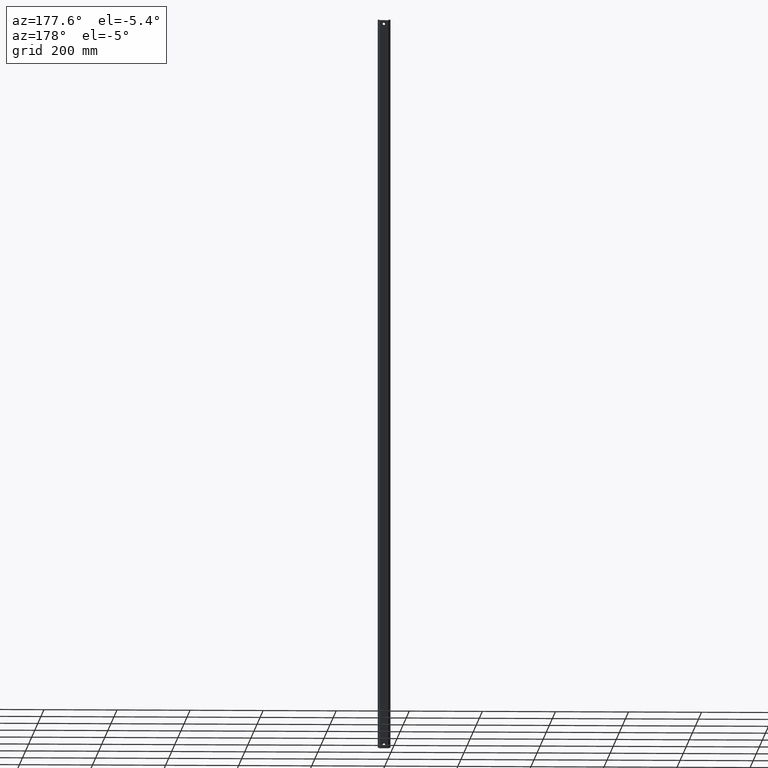
[diagram: clean part render]
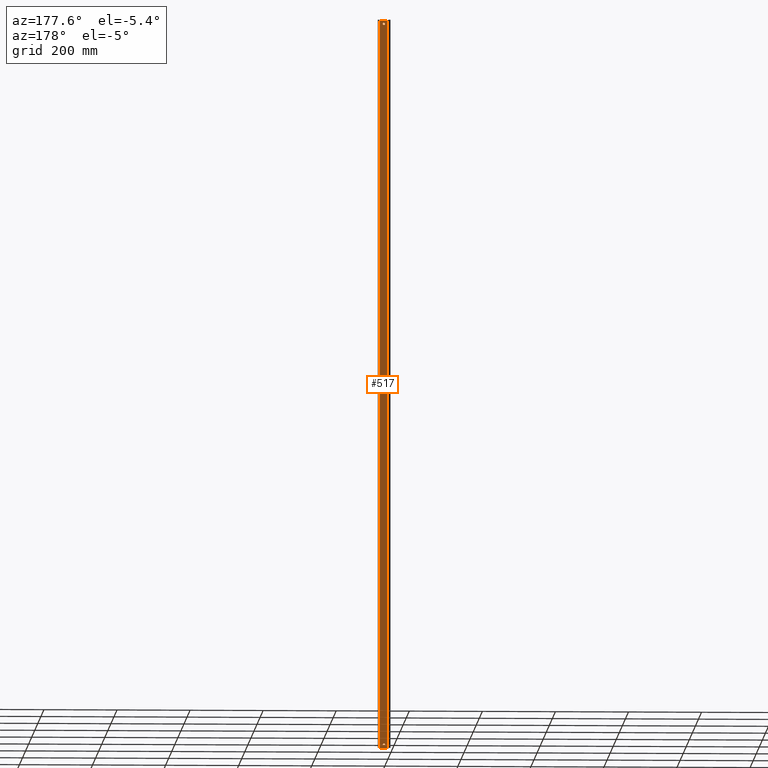
[diagram: same view with one face highlighted and labeled with its STEP entity id]
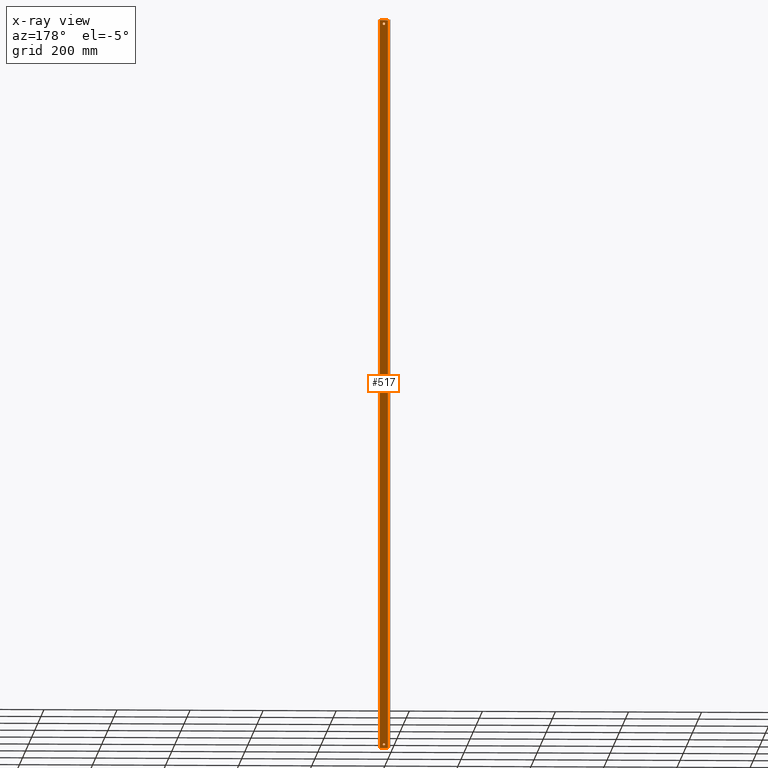
[diagram: x-ray of the same camera — body ghosted, the highlighted face saturated]
A machine part, auxiliary view. The second image highlights one B-rep face of the part: STEP entity #517.
The next image is the same camera in x-ray: the body ghosted, the highlighted face saturated — about 0% of this face is hidden behind the body in this view.
In plain terms, the highlighted planar face has unit normal (0, 1, 0).
Its self-contained STEP definition (entity closure, byte-faithful):
#5 = LINE ( 'NONE', #48, #949 ) ;
#6 = CARTESIAN_POINT ( 'NONE',  ( 10.80000000000001500, 1.500000000000001300, 1990.000000000000000 ) ) ;
#7 = DIRECTION ( 'NONE',  ( 0.0000000000000000000, 0.0000000000000000000, 1.000000000000000000 ) ) ;
#8 = LINE ( 'NONE', #21, #543 ) ;
#21 = CARTESIAN_POINT ( 'NONE',  ( 21.60000000000014700, 1.500000000000001300, 2000.000000000000000 ) ) ;
#28 = DIRECTION ( 'NONE',  ( 0.0000000000000000000, 1.000000000000000000, 0.0000000000000000000 ) ) ;
#30 = DIRECTION ( 'NONE',  ( -0.0000000000000000000, -0.0000000000000000000, -1.000000000000000000 ) ) ;
#48 = CARTESIAN_POINT ( 'NONE',  ( 10.49461781091140900, 1.500000000000001300, 0.0000000000000000000 ) ) ;
#54 = CARTESIAN_POINT ( 'NONE',  ( 10.80000000000001500, 1.500000000000001300, 10.00000000000000900 ) ) ;
#61 = CARTESIAN_POINT ( 'NONE',  ( 10.80000000000001500, 1.500000000000001300, 10.00000000000000900 ) ) ;
#62 = DIRECTION ( 'NONE',  ( 0.0000000000000000000, 0.0000000000000000000, -1.000000000000000000 ) ) ;
#64 = DIRECTION ( 'NONE',  ( -0.0000000000000000000, 1.000000000000000000, -0.0000000000000000000 ) ) ;
#66 = DIRECTION ( 'NONE',  ( 1.000000000000000000, 0.0000000000000000000, 0.0000000000000000000 ) ) ;
#72 = CARTESIAN_POINT ( 'NONE',  ( 0.0000000000000000000, 1.500000000000001300, 2000.000000000000000 ) ) ;
#74 = LINE ( 'NONE', #72, #946 ) ;
#75 = DIRECTION ( 'NONE',  ( -0.0000000000000000000, -0.0000000000000000000, -1.000000000000000000 ) ) ;
#86 = DIRECTION ( 'NONE',  ( 0.0000000000000000000, 0.0000000000000000000, -1.000000000000000000 ) ) ;
#88 = DIRECTION ( 'NONE',  ( -0.0000000000000000000, 1.000000000000000000, -0.0000000000000000000 ) ) ;
#97 = DIRECTION ( 'NONE',  ( 0.0000000000000000000, 1.000000000000000000, 0.0000000000000000000 ) ) ;
#100 = CARTESIAN_POINT ( 'NONE',  ( 10.80000000000001500, 1.500000000000001300, 1990.000000000000000 ) ) ;
#116 = DIRECTION ( 'NONE',  ( 0.0000000000000000000, 0.0000000000000000000, 1.000000000000000000 ) ) ;
#123 = LINE ( 'NONE', #128, #794 ) ;
#128 = CARTESIAN_POINT ( 'NONE',  ( 10.49461781091140900, 1.500000000000001300, 2000.000000000000000 ) ) ;
#130 = DIRECTION ( 'NONE',  ( 1.000000000000000000, 0.0000000000000000000, 0.0000000000000000000 ) ) ;
#222 = CARTESIAN_POINT ( 'NONE',  ( 0.0000000000000000000, 1.500000000000001300, 0.0000000000000000000 ) ) ;
#242 = CARTESIAN_POINT ( 'NONE',  ( 10.80000000000001500, 1.500000000000001300, 6.750000000000008000 ) ) ;
#244 = CARTESIAN_POINT ( 'NONE',  ( 21.60000000000014700, 1.500000000000001300, 2000.000000000000000 ) ) ;
#249 = CARTESIAN_POINT ( 'NONE',  ( 21.60000000000014700, 1.500000000000001300, 0.0000000000000000000 ) ) ;
#251 = CARTESIAN_POINT ( 'NONE',  ( 10.80000000000001500, 1.500000000000001300, 1986.750000000000000 ) ) ;
#265 = CARTESIAN_POINT ( 'NONE',  ( 10.80000000000001500, 1.500000000000001300, 1993.250000000000000 ) ) ;
#272 = CARTESIAN_POINT ( 'NONE',  ( 10.80000000000001500, 1.500000000000001300, 13.25000000000001100 ) ) ;
#273 = CARTESIAN_POINT ( 'NONE',  ( 0.0000000000000000000, 1.500000000000001300, 2000.000000000000000 ) ) ;
#500 = AXIS2_PLACEMENT_3D ( 'NONE', #772, #769, #777 ) ;
#517 = ADVANCED_FACE ( 'NONE', ( #713, #733, #771 ), #770, .T. ) ;
#526 = AXIS2_PLACEMENT_3D ( 'NONE', #61, #64, #86 ) ;
#540 = CIRCLE ( 'NONE', #526, 3.250000000000001300 ) ;
#543 = VECTOR ( 'NONE', #30, 1000.000000000000000 ) ;
#652 = VERTEX_POINT ( 'NONE', #244 ) ;
#661 = ORIENTED_EDGE ( 'NONE', *, *, #900, .T. ) ;
#662 = ORIENTED_EDGE ( 'NONE', *, *, #907, .F. ) ;
#666 = VERTEX_POINT ( 'NONE', #265 ) ;
#668 = ORIENTED_EDGE ( 'NONE', *, *, #903, .F. ) ;
#669 = ORIENTED_EDGE ( 'NONE', *, *, #917, .F. ) ;
#673 = ORIENTED_EDGE ( 'NONE', *, *, #921, .F. ) ;
#687 = VERTEX_POINT ( 'NONE', #242 ) ;
#690 = VERTEX_POINT ( 'NONE', #272 ) ;
#697 = ORIENTED_EDGE ( 'NONE', *, *, #914, .F. ) ;
#705 = ORIENTED_EDGE ( 'NONE', *, *, #927, .T. ) ;
#708 = ORIENTED_EDGE ( 'NONE', *, *, #906, .F. ) ;
#713 = FACE_BOUND ( 'NONE', #764, .T. ) ;
#719 = VERTEX_POINT ( 'NONE', #222 ) ;
#731 = EDGE_LOOP ( 'NONE', ( #708, #669, #705, #661 ) ) ;
#733 = FACE_BOUND ( 'NONE', #760, .T. ) ;
#740 = VERTEX_POINT ( 'NONE', #249 ) ;
#746 = VERTEX_POINT ( 'NONE', #251 ) ;
#751 = VERTEX_POINT ( 'NONE', #273 ) ;
#760 = EDGE_LOOP ( 'NONE', ( #673, #668 ) ) ;
#764 = EDGE_LOOP ( 'NONE', ( #697, #662 ) ) ;
#769 = DIRECTION ( 'NONE',  ( 0.0000000000000000000, 1.000000000000000000, 0.0000000000000000000 ) ) ;
#770 = PLANE ( 'NONE',  #500 ) ;
#771 = FACE_OUTER_BOUND ( 'NONE', #731, .T. ) ;
#772 = CARTESIAN_POINT ( 'NONE',  ( 10.49461781091140900, 1.500000000000001300, 2000.000000000000000 ) ) ;
#777 = DIRECTION ( 'NONE',  ( 0.0000000000000000000, -0.0000000000000000000, 1.000000000000000000 ) ) ;
#783 = CIRCLE ( 'NONE', #812, 3.249999999999975100 ) ;
#794 = VECTOR ( 'NONE', #130, 1000.000000000000000 ) ;
#812 = AXIS2_PLACEMENT_3D ( 'NONE', #100, #97, #116 ) ;
#900 = EDGE_CURVE ( 'NONE', #652, #740, #8, .T. ) ;
#903 = EDGE_CURVE ( 'NONE', #746, #666, #956, .T. ) ;
#906 = EDGE_CURVE ( 'NONE', #719, #740, #5, .T. ) ;
#907 = EDGE_CURVE ( 'NONE', #687, #690, #950, .T. ) ;
#914 = EDGE_CURVE ( 'NONE', #690, #687, #540, .T. ) ;
#917 = EDGE_CURVE ( 'NONE', #751, #719, #74, .T. ) ;
#921 = EDGE_CURVE ( 'NONE', #666, #746, #783, .T. ) ;
#927 = EDGE_CURVE ( 'NONE', #751, #652, #123, .T. ) ;
#944 = AXIS2_PLACEMENT_3D ( 'NONE', #6, #28, #7 ) ;
#946 = VECTOR ( 'NONE', #75, 1000.000000000000000 ) ;
#949 = VECTOR ( 'NONE', #66, 1000.000000000000000 ) ;
#950 = CIRCLE ( 'NONE', #952, 3.250000000000001300 ) ;
#952 = AXIS2_PLACEMENT_3D ( 'NONE', #54, #88, #62 ) ;
#956 = CIRCLE ( 'NONE', #944, 3.249999999999975100 ) ;